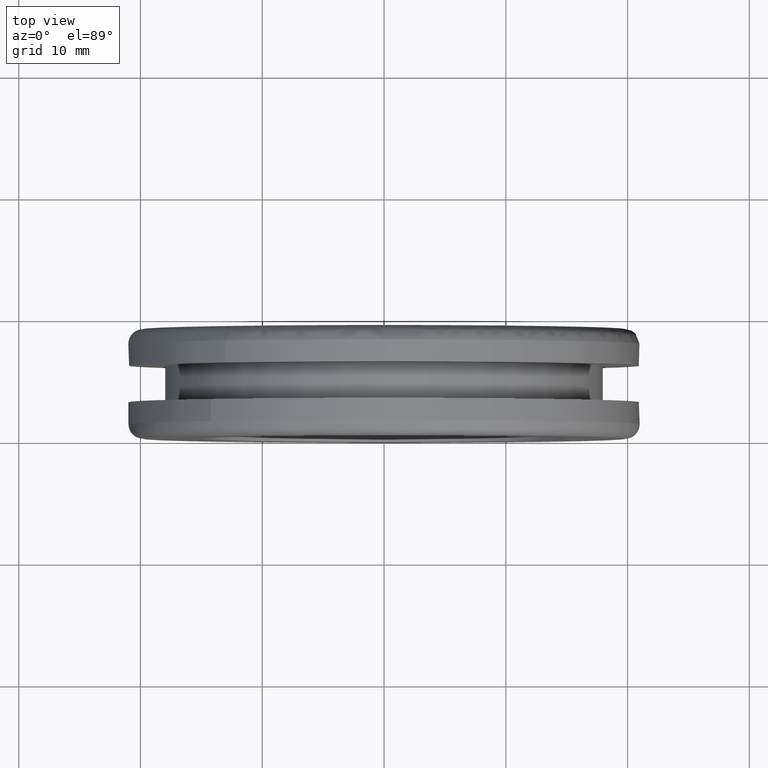
[diagram: clean part render]
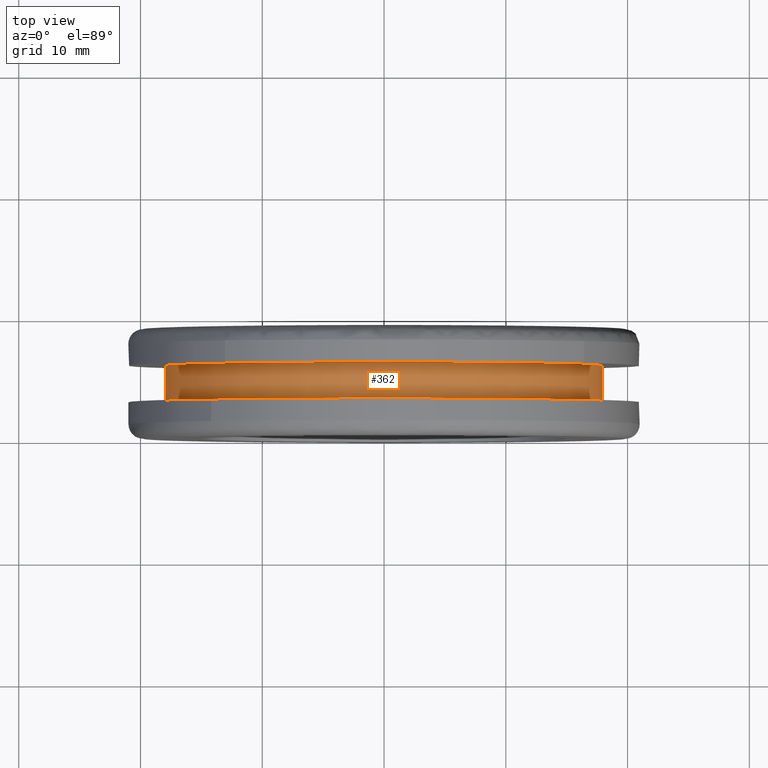
[diagram: same view with one face highlighted and labeled with its STEP entity id]
A machine part, top view. The second image highlights one B-rep face of the part: STEP entity #362.
In plain terms, the highlighted face is a freeform B-spline surface patch.
Its self-contained STEP definition (entity closure, byte-faithful):
#260=CARTESIAN_POINT('',(17.874171474545992,6.075000000000003,-2.124616223821652));
#261=CARTESIAN_POINT('',(17.934977078074905,6.075000000000001,-1.613065115483598));
#262=CARTESIAN_POINT('',(17.966426371593599,6.075000000000001,-1.098873711627426));
#263=CARTESIAN_POINT('',(19.065300083221029,6.075000000000003,16.867552659966176));
#264=CARTESIAN_POINT('',(1.098873711627426,6.075000000000001,17.966426371593599));
#265=CARTESIAN_POINT('',(-16.867552659966176,6.075000000000003,19.065300083221029));
#266=CARTESIAN_POINT('',(-17.966426371593599,6.075000000000001,1.098873711627425));
#267=CARTESIAN_POINT('',(17.874171474545992,2.923124999999999,-2.124616223821652));
#268=CARTESIAN_POINT('',(17.934977078074905,2.923124999999999,-1.613065115483598));
#269=CARTESIAN_POINT('',(17.966426371593599,2.923124999999999,-1.098873711627426));
#270=CARTESIAN_POINT('',(19.065300083221029,2.923124999999999,16.867552659966176));
#271=CARTESIAN_POINT('',(1.098873711627426,2.923124999999999,17.966426371593599));
#272=CARTESIAN_POINT('',(-16.867552659966176,2.923124999999999,19.065300083221029));
#273=CARTESIAN_POINT('',(-17.966426371593599,2.923124999999999,1.098873711627425));
#281=(BOUNDED_SURFACE()B_SPLINE_SURFACE(2,1,((#260,#267),(#261,#268),(#262,#269),(#263,#270),(#264,#271),(#265,#272),(#266,#273)),.UNSPECIFIED.,.F.,.F.,.U.)B_SPLINE_SURFACE_WITH_KNOTS((3,2,2,3),(2,2),(0.0,1.192935059634515,31.016311550497349,60.839688041360183),(0.0,3.151875000000003),.UNSPECIFIED.)GEOMETRIC_REPRESENTATION_ITEM()RATIONAL_B_SPLINE_SURFACE(((0.977505800795127,0.977505800795127),(0.988284271247462,0.988284271247462),(1.0,1.0),(0.707106781186548,0.707106781186548),(1.0,1.0),(0.707106781186548,0.707106781186548),(1.0,1.0)))REPRESENTATION_ITEM('')SURFACE());
#282=CARTESIAN_POINT('',(17.874173166973701,3.000000000000256,-2.124601985509664));
#283=VERTEX_POINT('',#282);
#284=CARTESIAN_POINT('',(0.0,3.0,18.0));
#285=VERTEX_POINT('',#284);
#286=CARTESIAN_POINT('',(17.874173166973701,3.000000000000256,-2.124601985509665));
#287=CARTESIAN_POINT('',(18.000000000000007,2.999999999999999,-1.066026959316431));
#288=CARTESIAN_POINT('',(18.0,3.0,-3.061516E-016));
#289=CARTESIAN_POINT('',(18.000000000000007,3.000000000000000,18.000000000000007));
#290=CARTESIAN_POINT('',(0.0,3.0,18.0));
#298=(BOUNDED_CURVE()B_SPLINE_CURVE(2,(#286,#287,#288,#289,#290),.UNSPECIFIED.,.F.,.U.)B_SPLINE_CURVE_WITH_KNOTS((3,2,3),(0.229562608141247,0.250000000000000,0.500000000000000),.UNSPECIFIED.)CURVE()GEOMETRIC_REPRESENTATION_ITEM()RATIONAL_B_SPLINE_CURVE((0.956027018059746,0.976056106057352,1.0,0.707106781186547,1.0))REPRESENTATION_ITEM(''));
#299=EDGE_CURVE('',#283,#285,#298,.T.);
#300=ORIENTED_EDGE('',*,*,#299,.F.);
#301=CARTESIAN_POINT('',(17.874173146101910,6.0,-2.124602161104200));
#302=VERTEX_POINT('',#301);
#303=CARTESIAN_POINT('',(17.874173146101910,6.0,-2.124602161104200));
#304=CARTESIAN_POINT('',(17.874173166973701,3.000000000000256,-2.124601985509664));
#305=QUASI_UNIFORM_CURVE('',1,(#303,#304),.UNSPECIFIED.,.F.,.U.);
#306=EDGE_CURVE('',#302,#283,#305,.T.);
#307=ORIENTED_EDGE('',*,*,#306,.F.);
#308=CARTESIAN_POINT('',(0.0,6.0,18.0));
#309=VERTEX_POINT('',#308);
#310=CARTESIAN_POINT('',(17.874173146101910,5.999999999999999,-2.124602161104200));
#311=CARTESIAN_POINT('',(18.000000000000004,6.0,-1.066027048041859));
#312=CARTESIAN_POINT('',(18.0,6.0,-3.061516E-016));
#313=CARTESIAN_POINT('',(18.000000000000007,6.0,18.000000000000007));
#314=CARTESIAN_POINT('',(0.0,6.0,18.0));
#322=(BOUNDED_CURVE()B_SPLINE_CURVE(2,(#310,#311,#312,#313,#314),.UNSPECIFIED.,.F.,.U.)B_SPLINE_CURVE_WITH_KNOTS((3,2,3),(0.229562606480971,0.250000000000000,0.500000000000000),.UNSPECIFIED.)CURVE()GEOMETRIC_REPRESENTATION_ITEM()RATIONAL_B_SPLINE_CURVE((0.956027014805534,0.976056104112218,1.0,0.707106781186547,1.0))REPRESENTATION_ITEM(''));
#323=EDGE_CURVE('',#302,#309,#322,.T.);
#324=ORIENTED_EDGE('',*,*,#323,.T.);
#325=CARTESIAN_POINT('',(-17.966427451944160,6.0,1.098856047767012));
#326=VERTEX_POINT('',#325);
#327=CARTESIAN_POINT('',(0.0,6.0,18.0));
#328=CARTESIAN_POINT('',(-16.932725882969979,6.000000000000001,18.0));
#329=CARTESIAN_POINT('',(-17.966427451944153,6.0,1.098856047767012));
#337=(BOUNDED_CURVE()B_SPLINE_CURVE(2,(#327,#328,#329),.UNSPECIFIED.,.F.,.U.)B_SPLINE_CURVE_WITH_KNOTS((3,3),(0.500000000000000,0.739333131882983),.UNSPECIFIED.)CURVE()GEOMETRIC_REPRESENTATION_ITEM()RATIONAL_B_SPLINE_CURVE((1.0,0.719603794536354,0.976072405246458))REPRESENTATION_ITEM(''));
#338=EDGE_CURVE('',#309,#326,#337,.T.);
#339=ORIENTED_EDGE('',*,*,#338,.T.);
#340=CARTESIAN_POINT('',(-17.966427465441718,2.999999999999917,1.098855827076634));
#341=VERTEX_POINT('',#340);
#342=CARTESIAN_POINT('',(-17.966427451944160,6.0,1.098856047767012));
#343=CARTESIAN_POINT('',(-17.966427465441718,2.999999999999917,1.098855827076634));
#344=QUASI_UNIFORM_CURVE('',1,(#342,#343),.UNSPECIFIED.,.F.,.U.);
#345=EDGE_CURVE('',#326,#341,#344,.T.);
#346=ORIENTED_EDGE('',*,*,#345,.T.);
#347=CARTESIAN_POINT('',(0.0,3.0,18.0));
#348=CARTESIAN_POINT('',(-16.932726091351547,3.000000000000000,17.999999999999996));
#349=CARTESIAN_POINT('',(-17.966427465441715,2.999999999999917,1.098855827076633));
#357=(BOUNDED_CURVE()B_SPLINE_CURVE(2,(#347,#348,#349),.UNSPECIFIED.,.F.,.U.)B_SPLINE_CURVE_WITH_KNOTS((3,3),(0.500000000000000,0.739333134002460),.UNSPECIFIED.)CURVE()GEOMETRIC_REPRESENTATION_ITEM()RATIONAL_B_SPLINE_CURVE((1.0,0.719603792053233,0.976072409788907))REPRESENTATION_ITEM(''));
#358=EDGE_CURVE('',#285,#341,#357,.T.);
#359=ORIENTED_EDGE('',*,*,#358,.F.);
#360=EDGE_LOOP('',(#300,#307,#324,#339,#346,#359));
#361=FACE_OUTER_BOUND('',#360,.T.);
#362=ADVANCED_FACE('',(#361),#281,.T.);